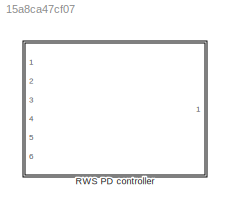
MODEL slx_15a8ca47cf07
KIND library
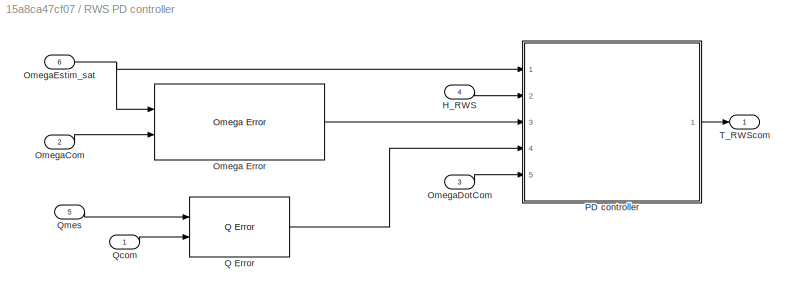
BLOCK [SubSystem] RWS PD controller
  Ports = [6, 1]
  RequestExecContextInheritance = off
BLOCK [Inport] RWS PD controller/H_RWS
  IconDisplay = Port number
  Port = 4
BLOCK [Reference] RWS PD controller/Omega Error  REF=OmegaError/Omega Error
  Ports = [2, 1]
  SourceBlock = OmegaError/Omega Error
  SourceType = SubSystem
BLOCK [Inport] RWS PD controller/OmegaCom
  IconDisplay = Port number
  Port = 2
BLOCK [Inport] RWS PD controller/OmegaDotCom
  IconDisplay = Port number
  Port = 3
BLOCK [Inport] RWS PD controller/OmegaEstim_sat
  IconDisplay = Port number
  Port = 6
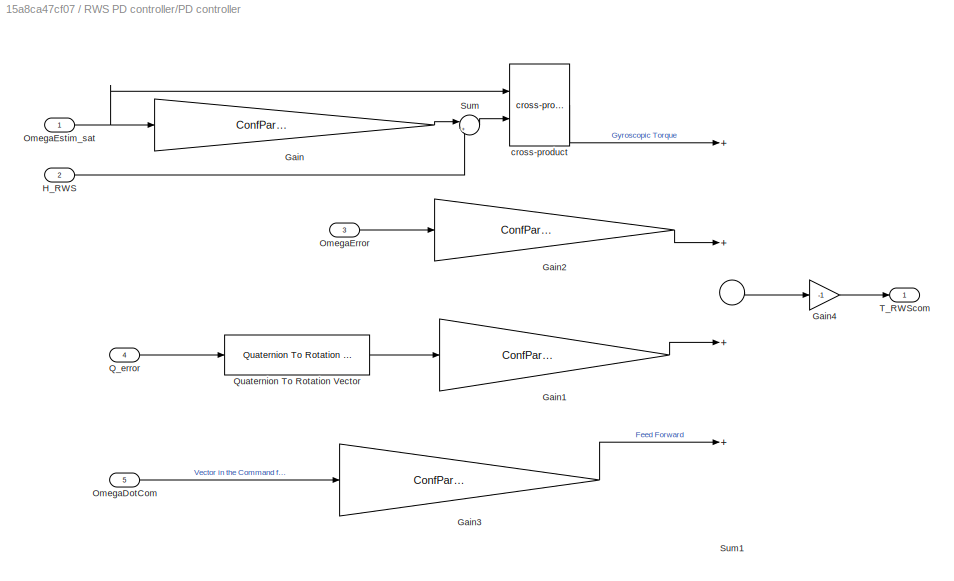
BLOCK [SubSystem] RWS PD controller/PD controller
  Ports = [5, 1]
  RequestExecContextInheritance = off
BLOCK [Gain] RWS PD controller/PD controller/Gain
  Gain = ConfParam.confRWS_PDcontroller.I_sat
  Multiplication = Matrix(K*u)
  OutDataTypeStr = Inherit: Inherit via internal rule
  ParamDataTypeStr = Inherit: Inherit via internal rule
  SaturateOnIntegerOverflow = off
BLOCK [Gain] RWS PD controller/PD controller/Gain1
  Gain = ConfParam.confRWS_PDcontroller.kp
  Multiplication = Matrix(K*u)
  OutDataTypeStr = Inherit: Inherit via internal rule
  ParamDataTypeStr = Inherit: Inherit via internal rule
  SaturateOnIntegerOverflow = off
BLOCK [Gain] RWS PD controller/PD controller/Gain2
  Gain = ConfParam.confRWS_PDcontroller.kd
  Multiplication = Matrix(K*u)
  OutDataTypeStr = Inherit: Inherit via internal rule
  ParamDataTypeStr = Inherit: Inherit via internal rule
  SaturateOnIntegerOverflow = off
BLOCK [Gain] RWS PD controller/PD controller/Gain3
  Gain = ConfParam.confRWS_PDcontroller.I_sat
  Multiplication = Matrix(K*u)
  OutDataTypeStr = Inherit: Inherit via internal rule
  ParamDataTypeStr = Inherit: Inherit via internal rule
  SaturateOnIntegerOverflow = off
BLOCK [Gain] RWS PD controller/PD controller/Gain4
  Gain = -1
  OutDataTypeStr = Inherit: Inherit via internal rule
  ParamDataTypeStr = Inherit: Inherit via internal rule
  SaturateOnIntegerOverflow = off
BLOCK [Inport] RWS PD controller/PD controller/H_RWS
  IconDisplay = Port number
  Port = 2
BLOCK [Inport] RWS PD controller/PD controller/OmegaDotCom
  IconDisplay = Port number
  Port = 5
BLOCK [Inport] RWS PD controller/PD controller/OmegaError
  IconDisplay = Port number
  Port = 3
BLOCK [Inport] RWS PD controller/PD controller/OmegaEstim_sat
  IconDisplay = Port number
BLOCK [Inport] RWS PD controller/PD controller/Q_error
  IconDisplay = Port number
  Port = 4
BLOCK [Reference] RWS PD controller/PD controller/Quaternion To Rotation Vector  REF=Quat2Rot/Quaternion To Rotation Vector
  Ports = [1, 1]
  SourceBlock = Quat2Rot/Quaternion To Rotation Vector
  SourceType = SubSystem
BLOCK [Sum] RWS PD controller/PD controller/Sum
  IconShape = round
  InputSameDT = off
  Inputs = |++
  OutDataTypeStr = Inherit: Inherit via internal rule
  Ports = [2, 1]
  SaturateOnIntegerOverflow = off
BLOCK [Sum] RWS PD controller/PD controller/Sum1
  InputSameDT = off
  Inputs = ++++
  OutDataTypeStr = Inherit: Inherit via internal rule
  Ports = [4, 1]
  SaturateOnIntegerOverflow = off
BLOCK [Outport] RWS PD controller/PD controller/T_RWScom
  IconDisplay = Port number
BLOCK [Reference] RWS PD controller/PD controller/cross-product  REF=CrossProd/cross-product
  Ports = [2, 1]
  SourceBlock = CrossProd/cross-product
  SourceType = SubSystem
BLOCK [Reference] RWS PD controller/Q Error  REF=Qerror/Q Error
  Ports = [2, 1]
  SourceBlock = Qerror/Q Error
  SourceType = SubSystem
BLOCK [Inport] RWS PD controller/Qcom
  IconDisplay = Port number
BLOCK [Inport] RWS PD controller/Qmes
  IconDisplay = Port number
  Port = 5
BLOCK [Outport] RWS PD controller/T_RWScom
  IconDisplay = Port number
LINE RWS PD controller/H_RWS:1 -> RWS PD controller/PD controller:2
LINE RWS PD controller/Omega Error:1 -> RWS PD controller/PD controller:3
LINE RWS PD controller/OmegaCom:1 -> RWS PD controller/Omega Error:2
LINE RWS PD controller/OmegaDotCom:1 -> RWS PD controller/PD controller:5
NET RWS PD controller/OmegaEstim_sat:1 -> RWS PD controller/Omega Error:1, RWS PD controller/PD controller:1
LINE RWS PD controller/PD controller/Gain1:1 -> RWS PD controller/PD controller/Sum1:3
LINE RWS PD controller/PD controller/Gain2:1 -> RWS PD controller/PD controller/Sum1:2
LINE RWS PD controller/PD controller/Gain3:1 -> RWS PD controller/PD controller/Sum1:4
LINE RWS PD controller/PD controller/Gain4:1 -> RWS PD controller/PD controller/T_RWScom:1
LINE RWS PD controller/PD controller/Gain:1 -> RWS PD controller/PD controller/Sum:1
LINE RWS PD controller/PD controller/H_RWS:1 -> RWS PD controller/PD controller/Sum:2
LINE RWS PD controller/PD controller/OmegaDotCom:1 -> RWS PD controller/PD controller/Gain3:1
LINE RWS PD controller/PD controller/OmegaError:1 -> RWS PD controller/PD controller/Gain2:1
NET RWS PD controller/PD controller/OmegaEstim_sat:1 -> RWS PD controller/PD controller/Gain:1, RWS PD controller/PD controller/cross-product:1
LINE RWS PD controller/PD controller/Q_error:1 -> RWS PD controller/PD controller/Quaternion To Rotation Vector:1
LINE RWS PD controller/PD controller/Quaternion To Rotation Vector:1 -> RWS PD controller/PD controller/Gain1:1
LINE RWS PD controller/PD controller/Sum1:1 -> RWS PD controller/PD controller/Gain4:1
LINE RWS PD controller/PD controller/Sum:1 -> RWS PD controller/PD controller/cross-product:2
LINE RWS PD controller/PD controller/cross-product:1 -> RWS PD controller/PD controller/Sum1:1
LINE RWS PD controller/PD controller:1 -> RWS PD controller/T_RWScom:1
LINE RWS PD controller/Q Error:1 -> RWS PD controller/PD controller:4
LINE RWS PD controller/Qcom:1 -> RWS PD controller/Q Error:2
LINE RWS PD controller/Qmes:1 -> RWS PD controller/Q Error:1
note: NET lines group one-source signal fan-out (src -> all destinations, sorted); 1:1 wires keep LINE
